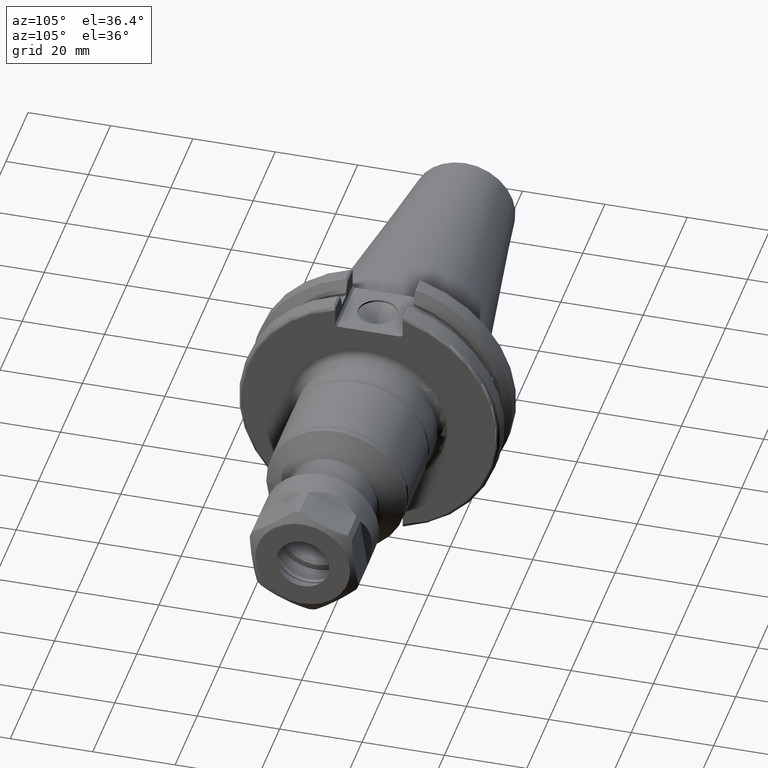
[diagram: clean part render]
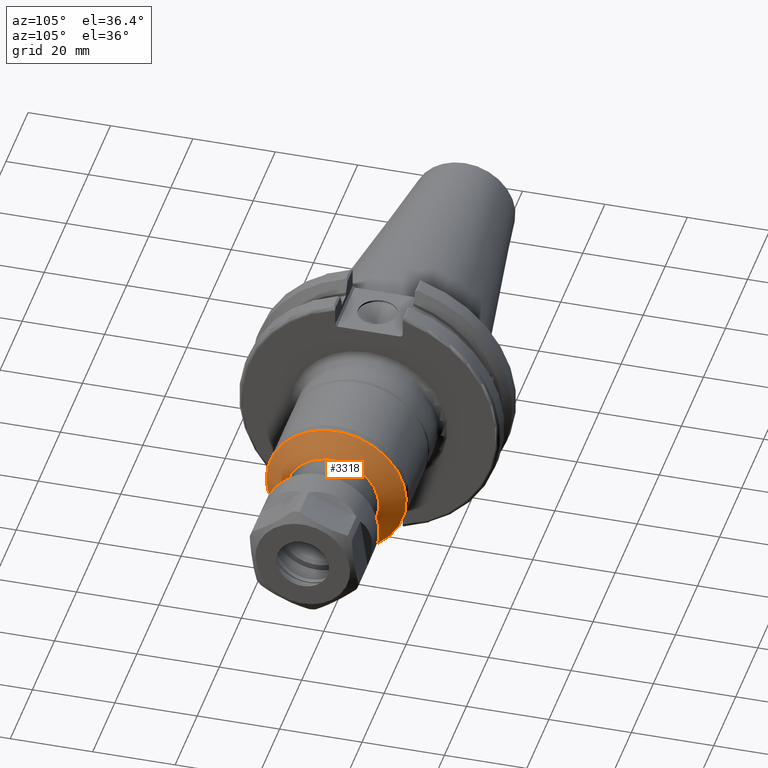
[diagram: same view with one face highlighted and labeled with its STEP entity id]
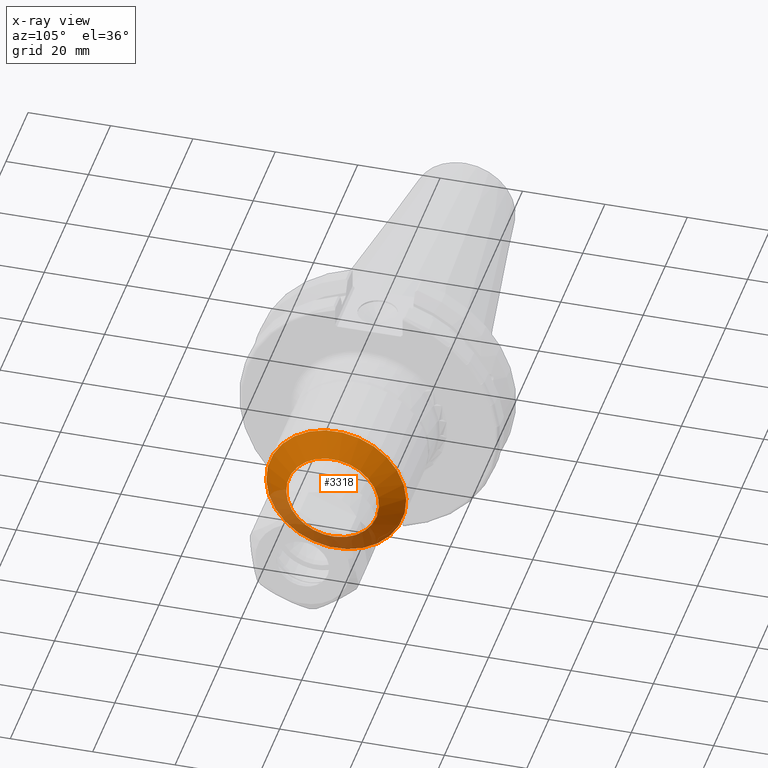
[diagram: x-ray of the same camera — body ghosted, the highlighted face saturated]
A machine part, auxiliary view. The second image highlights one B-rep face of the part: STEP entity #3318.
The next image is the same camera in x-ray: the body ghosted, the highlighted face saturated — about 21% of this face is hidden behind the body in this view.
In plain terms, the highlighted conical surface has half-angle 60 deg.
Its self-contained STEP definition (entity closure, byte-faithful):
#506=FACE_OUTER_BOUND('',#730,.T.);
#730=EDGE_LOOP('',(#2852,#2853,#2854,#2855,#2856));
#944=LINE('',#6125,#1132);
#1132=VECTOR('',#4669,14.);
#1323=CIRCLE('',#3799,11.25);
#1324=CIRCLE('',#3800,11.25);
#1328=CIRCLE('',#3806,17.);
#1618=VERTEX_POINT('',#6110);
#1619=VERTEX_POINT('',#6112);
#1622=VERTEX_POINT('',#6123);
#2048=EDGE_CURVE('',#1618,#1619,#1323,.T.);
#2049=EDGE_CURVE('',#1619,#1618,#1324,.T.);
#2054=EDGE_CURVE('',#1622,#1622,#1328,.T.);
#2055=EDGE_CURVE('',#1622,#1619,#944,.T.);
#2852=ORIENTED_EDGE('',*,*,#2054,.F.);
#2853=ORIENTED_EDGE('',*,*,#2055,.T.);
#2854=ORIENTED_EDGE('',*,*,#2048,.F.);
#2855=ORIENTED_EDGE('',*,*,#2049,.F.);
#2856=ORIENTED_EDGE('',*,*,#2055,.F.);
#3166=CONICAL_SURFACE('',#3805,14.,1.0471975511966);
#3318=ADVANCED_FACE('',(#506),#3166,.T.);
#3799=AXIS2_PLACEMENT_3D('',#6113,#4652,#4653);
#3800=AXIS2_PLACEMENT_3D('',#6114,#4654,#4655);
#3805=AXIS2_PLACEMENT_3D('',#6122,#4665,#4666);
#3806=AXIS2_PLACEMENT_3D('',#6124,#4667,#4668);
#4652=DIRECTION('center_axis',(1.,0.,0.));
#4653=DIRECTION('ref_axis',(0.,-1.,-3.06161699786838E-17));
#4654=DIRECTION('center_axis',(1.,0.,0.));
#4655=DIRECTION('ref_axis',(0.,-1.,-3.06161699786838E-17));
#4665=DIRECTION('center_axis',(-1.,0.,0.));
#4666=DIRECTION('ref_axis',(0.,1.,0.));
#4667=DIRECTION('center_axis',(-1.,0.,0.));
#4668=DIRECTION('ref_axis',(0.,0.,1.));
#4669=DIRECTION('',(0.5,0.866025403784438,-1.06057523872491E-16));
#6110=CARTESIAN_POINT('',(-15.1443375672974,-1.37772764904077E-15,-11.25));
#6112=CARTESIAN_POINT('',(-15.1443375672974,-11.25,1.37772764904077E-15));
#6113=CARTESIAN_POINT('Origin',(-15.1443375672974,0.,1.72215956130097E-15));
#6114=CARTESIAN_POINT('Origin',(-15.1443375672974,0.,1.72215956130097E-15));
#6122=CARTESIAN_POINT('Origin',(-16.7320508075689,0.,0.));
#6123=CARTESIAN_POINT('',(-18.4641016151378,-17.,2.0818995585505E-15));
#6124=CARTESIAN_POINT('Origin',(-18.4641016151378,0.,0.));
#6125=CARTESIAN_POINT('',(-16.7320508075689,-14.,1.71450551880629E-15));